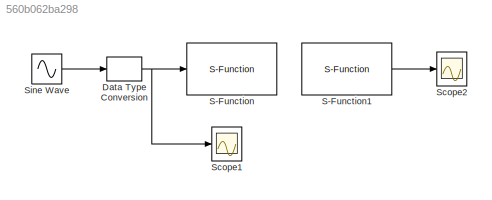
MODEL slx_560b062ba298
KIND model
CONFIG AbsTol = 1e-6
CONFIG EnableMultiTasking = on
CONFIG FixedStep = 0.001
CONFIG InitFcn = clear('all');
CONFIG MaxStep = auto
CONFIG MinStep = auto
CONFIG RelTol = 1e-6
CONFIG SampleTimeConstraint = Unconstrained
CONFIG Solver = FixedStepDiscrete
CONFIG SolverName = FixedStepDiscrete
CONFIG StartTime = 0.0
CONFIG StopTime = 100
BLOCK [DataTypeConversion] Data Type Conversion
  OutDataTypeStr = double
  RndMeth = Floor
  SaturateOnIntegerOverflow = off
BLOCK [S-Function] S-Function
  EnableBusSupport = off
  FunctionName = SFun_TCPSocketSend
  Parameters = ipAddr,ipPort
  Ports = [1]
  SFcnIsStateOwnerBlock = off
  SFunctionDeploymentMode = off
BLOCK [S-Function] S-Function1
  EnableBusSupport = off
  FunctionName = SFun_TCPSocketRecv
  Parameters = ipAddr,ipPort,dataType,sampleTime
  Ports = [0, 1]
  SFcnIsStateOwnerBlock = off
  SFunctionDeploymentMode = off
BLOCK [Scope] Scope1
  Floating = off
  NumInputPorts = 1
  Ports = [1]
  ScopeSpecificationString = Simulink.scopes.TimeScopeBlockCfg('CurrentConfiguration', extmgr.ConfigurationSet(extmgr.Configuration('Core','General UI',true),extmgr.Configuration('Core','Source UI',true),extmgr.Configuration('Sources','WiredSimulink',true,'DataLoggingVariableName','ScopeData1','DataLoggingSaveFormat','StructureWithTime','DataLoggingDecimation','1','DataLoggingDecimateData',true),extmgr.Configuration('Visuals'...<+1739ch>
BLOCK [Scope] Scope2
  Floating = off
  NumInputPorts = 1
  Ports = [1]
  ScopeSpecificationString = Simulink.scopes.TimeScopeBlockCfg('CurrentConfiguration', extmgr.ConfigurationSet(extmgr.Configuration('Core','General UI',true),extmgr.Configuration('Core','Source UI',true),extmgr.Configuration('Sources','WiredSimulink',true,'DataLoggingSaveFormat','StructureWithTime','DataLoggingDecimation','1','DataLoggingDecimateData',true),extmgr.Configuration('Visuals','Time Domain',true,'SerializedDisplays...<+1725ch>
BLOCK [Sin] Sine Wave
  Amplitude = 10
  Frequency = pi
  Ports = [0, 1]
  SampleTime = 0.001
NET Data Type Conversion:1 -> S-Function:1, Scope1:1
LINE S-Function1:1 -> Scope2:1
LINE Sine Wave:1 -> Data Type Conversion:1
note: NET lines group one-source signal fan-out (src -> all destinations, sorted); 1:1 wires keep LINE
